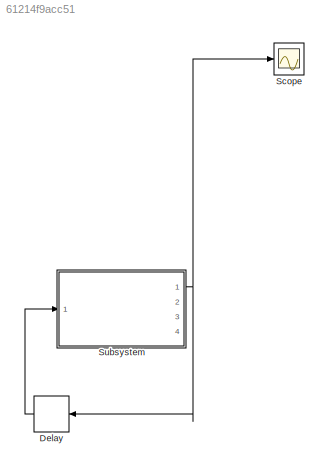
MODEL slx_61214f9acc51
KIND model
CONFIG AbsTol = auto
CONFIG EnableMultiTasking = off
CONFIG FixedStep = 0.005
CONFIG MaxStep = auto
CONFIG MinStep = auto
CONFIG RelTol = 1e-3
CONFIG SampleTimeConstraint = Unconstrained
CONFIG Solver = FixedStepDiscrete
CONFIG SolverName = FixedStepDiscrete
CONFIG StartTime = 0.0
CONFIG StopTime = 2500
BLOCK [Delay] Delay
  DelayLength = 1
  InitialCondition = 0
  InputPortMap = u0
  Ports = [1, 1]
BLOCK [Scope] Scope
  Floating = off
  NumInputPorts = 1
  Ports = [1]
  ScopeSpecificationString = Simulink.scopes.TimeScopeBlockCfg('CurrentConfiguration', extmgr.ConfigurationSet(extmgr.Configuration('Core','General UI',true),extmgr.Configuration('Core','Source UI',true),extmgr.Configuration('Sources','WiredSimulink',true),extmgr.Configuration('Visuals','Time Domain',true,'SerializedDisplays',{struct('MinYLimReal','-125.00000','MaxYLimReal','1125.00000','YLabelReal','','MinYLimMag',' 0.00000'...<+1398ch>
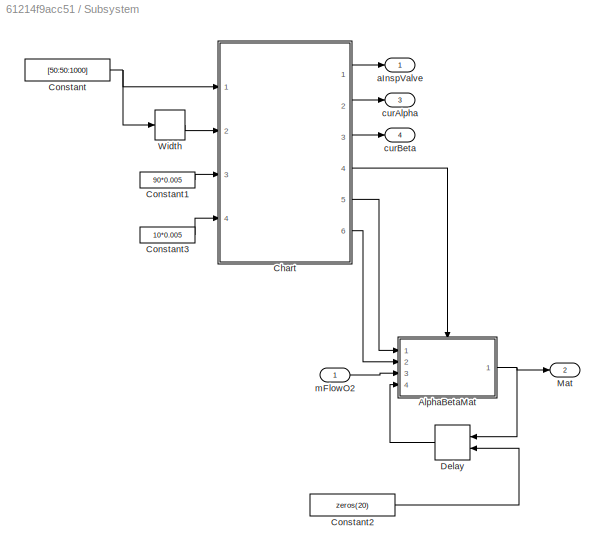
BLOCK [SubSystem] Subsystem
  Ports = [1, 4]
  RequestExecContextInheritance = off
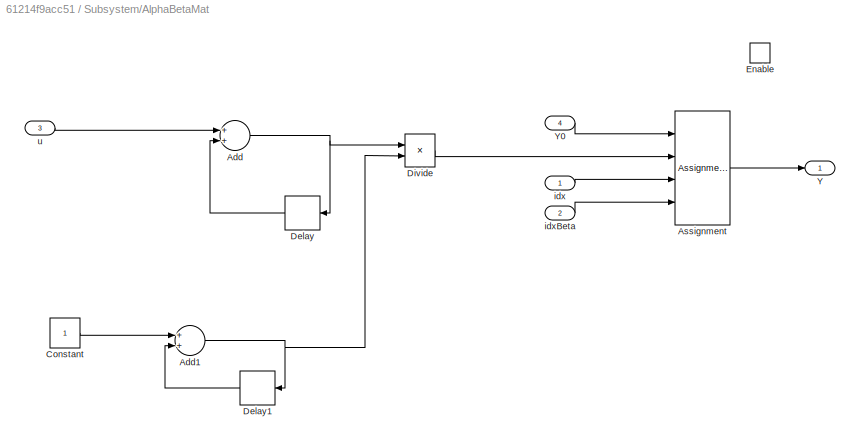
BLOCK [SubSystem] Subsystem/AlphaBetaMat
  Ports = [4, 1, 1]
  RequestExecContextInheritance = off
BLOCK [Sum] Subsystem/AlphaBetaMat/Add
  InputSameDT = off
  OutDataTypeStr = Inherit: Inherit via internal rule
  Ports = [2, 1]
  SaturateOnIntegerOverflow = off
BLOCK [Sum] Subsystem/AlphaBetaMat/Add1
  InputSameDT = off
  OutDataTypeStr = Inherit: Inherit via internal rule
  Ports = [2, 1]
  SaturateOnIntegerOverflow = off
BLOCK [Assignment] Subsystem/AlphaBetaMat/Assignment
  DiagnosticForDimensions = Warning
  IndexOptions = Index vector (port),Index vector (port)
  Indices = 1,1
  NumberOfDimensions = 2
  OutputSizes = 1,1
  Ports = [4, 1]
BLOCK [Constant] Subsystem/AlphaBetaMat/Constant
BLOCK [Delay] Subsystem/AlphaBetaMat/Delay
  DelayLength = 1
  InputPortMap = u0
  Ports = [1, 1]
BLOCK [Delay] Subsystem/AlphaBetaMat/Delay1
  DelayLength = 1
  InitialCondition = 0
  InputPortMap = u0
  Ports = [1, 1]
BLOCK [Product] Subsystem/AlphaBetaMat/Divide
  InputSameDT = off
  Inputs = */
  OutDataTypeStr = Inherit: Inherit via internal rule
  Ports = [2, 1]
BLOCK [EnablePort] Subsystem/AlphaBetaMat/Enable
  Ports = []
  StatesWhenEnabling = reset
BLOCK [Outport] Subsystem/AlphaBetaMat/Y
  IconDisplay = Port number
BLOCK [Inport] Subsystem/AlphaBetaMat/Y0
  IconDisplay = Port number
  Port = 4
BLOCK [Inport] Subsystem/AlphaBetaMat/idx
  IconDisplay = Port number
BLOCK [Inport] Subsystem/AlphaBetaMat/idxBeta
  IconDisplay = Port number
  Port = 2
BLOCK [Inport] Subsystem/AlphaBetaMat/u
  IconDisplay = Port number
  Port = 3
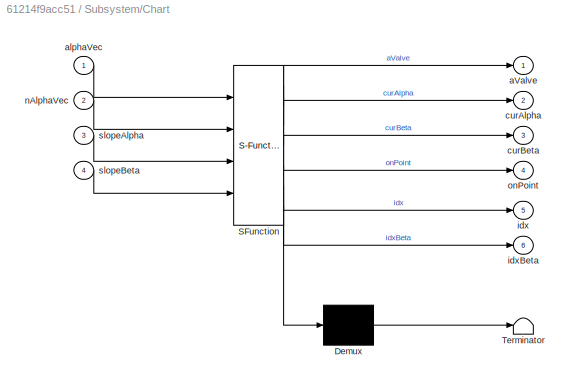
BLOCK [SubSystem] Subsystem/Chart
  ErrorFcn = Stateflow.Translate.translate
  PermitHierarchicalResolution = ExplicitOnly
  Ports = [4, 6]
  RequestExecContextInheritance = off
  SFBlockType = Chart
  TreatAsAtomicUnit = on
BLOCK [Demux] Subsystem/Chart/ Demux 
  Outputs = 1
  Ports = [1, 1]
BLOCK [S-Function] Subsystem/Chart/ SFunction 
  EnableBusSupport = on
  FunctionName = sf_sfun
  PortCounts = [4 7]
  Ports = [4, 7]
  SFcnIsStateOwnerBlock = off
  SFunctionDeploymentMode = off
  Tag = Stateflow S-Function identifyOnHW 3
BLOCK [Terminator] Subsystem/Chart/ Terminator 
BLOCK [Outport] Subsystem/Chart/aValve
  IconDisplay = Port number
BLOCK [Inport] Subsystem/Chart/alphaVec
  IconDisplay = Port number
BLOCK [Outport] Subsystem/Chart/curAlpha
  IconDisplay = Port number
  Port = 2
BLOCK [Outport] Subsystem/Chart/curBeta
  IconDisplay = Port number
  Port = 3
BLOCK [Outport] Subsystem/Chart/idx
  IconDisplay = Port number
  Port = 5
BLOCK [Outport] Subsystem/Chart/idxBeta
  IconDisplay = Port number
  Port = 6
BLOCK [Inport] Subsystem/Chart/nAlphaVec
  IconDisplay = Port number
  Port = 2
BLOCK [Outport] Subsystem/Chart/onPoint
  IconDisplay = Port number
  Port = 4
BLOCK [Inport] Subsystem/Chart/slopeAlpha
  IconDisplay = Port number
  Port = 3
BLOCK [Inport] Subsystem/Chart/slopeBeta
  IconDisplay = Port number
  Port = 4
BLOCK [Constant] Subsystem/Constant
  Value = [50:50:1000]
BLOCK [Constant] Subsystem/Constant1
  Value = 90*0.005
BLOCK [Constant] Subsystem/Constant2
  Value = zeros(20)
BLOCK [Constant] Subsystem/Constant3
  Value = 10*0.005
BLOCK [Delay] Subsystem/Delay
  DelayLength = 1
  InitialConditionSource = Input port
  InputPortMap = u0,p4
  Ports = [2, 1]
BLOCK [Outport] Subsystem/Mat
  IconDisplay = Port number
  InitialOutput = 0
  OutputWhenDisabled = reset
  Port = 2
BLOCK [Width] Subsystem/Width
BLOCK [Outport] Subsystem/aInspValve
  IconDisplay = Port number
  InitialOutput = 0
  OutputWhenDisabled = reset
BLOCK [Outport] Subsystem/curAlpha
  IconDisplay = Port number
  InitialOutput = 0
  OutputWhenDisabled = reset
  Port = 3
BLOCK [Outport] Subsystem/curBeta
  IconDisplay = Port number
  InitialOutput = 0
  OutputWhenDisabled = reset
  Port = 4
BLOCK [Inport] Subsystem/mFlowO2
  IconDisplay = Port number
LINE Delay:1 -> Subsystem:1
NET Subsystem/AlphaBetaMat/Add1:1 -> Subsystem/AlphaBetaMat/Delay1:1, Subsystem/AlphaBetaMat/Divide:2
NET Subsystem/AlphaBetaMat/Add:1 -> Subsystem/AlphaBetaMat/Delay:1, Subsystem/AlphaBetaMat/Divide:1
LINE Subsystem/AlphaBetaMat/Assignment:1 -> Subsystem/AlphaBetaMat/Y:1
LINE Subsystem/AlphaBetaMat/Constant:1 -> Subsystem/AlphaBetaMat/Add1:1
LINE Subsystem/AlphaBetaMat/Delay1:1 -> Subsystem/AlphaBetaMat/Add1:2
LINE Subsystem/AlphaBetaMat/Delay:1 -> Subsystem/AlphaBetaMat/Add:2
LINE Subsystem/AlphaBetaMat/Divide:1 -> Subsystem/AlphaBetaMat/Assignment:2
LINE Subsystem/AlphaBetaMat/Y0:1 -> Subsystem/AlphaBetaMat/Assignment:1
LINE Subsystem/AlphaBetaMat/idx:1 -> Subsystem/AlphaBetaMat/Assignment:3
LINE Subsystem/AlphaBetaMat/idxBeta:1 -> Subsystem/AlphaBetaMat/Assignment:4
LINE Subsystem/AlphaBetaMat/u:1 -> Subsystem/AlphaBetaMat/Add:1
NET Subsystem/AlphaBetaMat:1 -> Subsystem/Delay:1, Subsystem/Mat:1
LINE Subsystem/Chart:1 -> Subsystem/aInspValve:1
LINE Subsystem/Chart:2 -> Subsystem/curAlpha:1
LINE Subsystem/Chart:3 -> Subsystem/curBeta:1
LINE Subsystem/Chart:4 -> Subsystem/AlphaBetaMat:enable
LINE Subsystem/Chart:5 -> Subsystem/AlphaBetaMat:1
LINE Subsystem/Chart:6 -> Subsystem/AlphaBetaMat:2
LINE Subsystem/Constant1:1 -> Subsystem/Chart:3
LINE Subsystem/Constant2:1 -> Subsystem/Delay:2
LINE Subsystem/Constant3:1 -> Subsystem/Chart:4
NET Subsystem/Constant:1 -> Subsystem/Chart:1, Subsystem/Width:1
LINE Subsystem/Delay:1 -> Subsystem/AlphaBetaMat:4
LINE Subsystem/Width:1 -> Subsystem/Chart:2
LINE Subsystem/mFlowO2:1 -> Subsystem/AlphaBetaMat:3
NET Subsystem:1 -> Delay:1, Scope:1
note: NET lines group one-source signal fan-out (src -> all destinations, sorted); 1:1 wires keep LINE
CHART Subsystem/Chart states=7 transitions=11
  STATE_LABEL 'y'
  STATE_LABEL 'Initialize'
  STATE_LABEL 'RunAlphaValue\nen:\ncurAlpha=alphaVec(idx)'
  STATE_LABEL 'RampToAlpha\nen:\naValve=0;\nen,du:\naValve=min(curAlpha,aValve+slopeAlpha)'
  STATE_LABEL 'Done'
  STATE_LABEL 'RampToBeta\nen:\nidxBeta=max(idxBeta,1);\ncurBeta=alphaVec(idxBeta);\nen,du:\naValve=max(curBeta,aValve-slopeBeta)'
  STATE_LABEL 'Hold\nen:\nonPoint=true;\nex:\nonPoint=false;'
  STATE_LABEL '[after(200,tick) && ...\nidxBeta==1]'
  STATE_LABEL '[aValve>=curAlpha]\n{idxBeta=idx}'
  STATE_LABEL '[after(200,tick)]\n{idxBeta=idxBeta-1;}'
  STATE_LABEL '[aValve<=curBeta]'
  STATE_LABEL 'RampToAlpha\nen:\naValve=0;\nen,du:\naValve=min(curAlpha,aValve+slopeAlpha)'
  STATE_LABEL 'Done'
  STATE_LABEL 'RampToBeta\nen:\nidxBeta=max(idxBeta,1);\ncurBeta=alphaVec(idxBeta);\nen,du:\naValve=max(curBeta,aValve-slopeBeta)'
  STATE_LABEL 'Hold\nen:\nonPoint=true;\nex:\nonPoint=false;'
